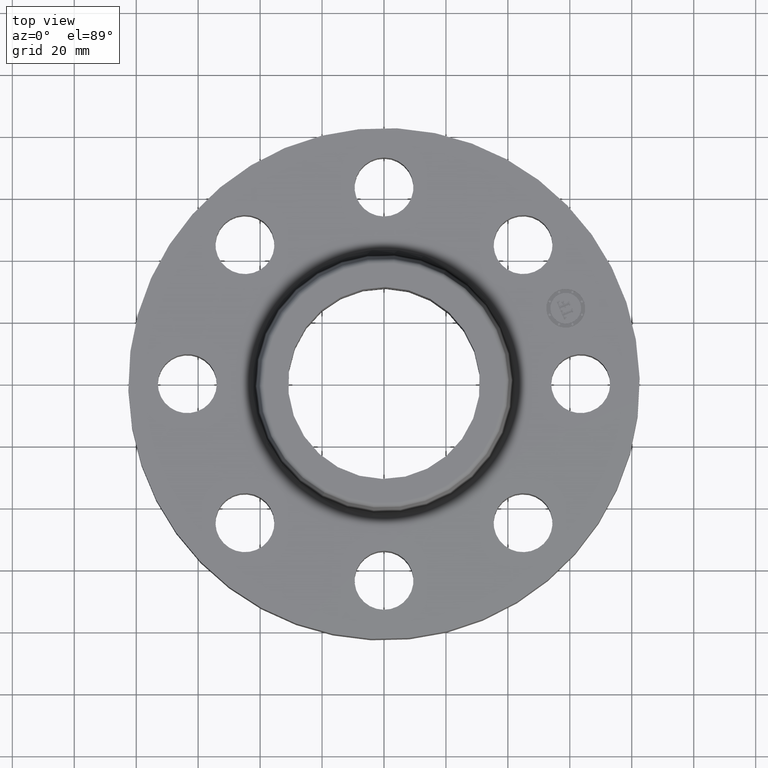
[diagram: clean part render]
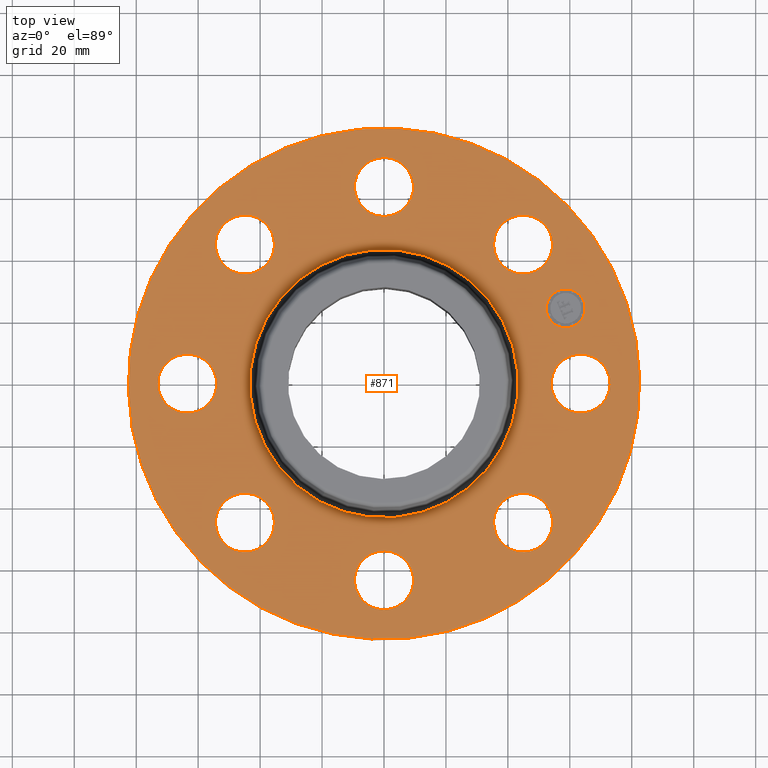
[diagram: same view with one face highlighted and labeled with its STEP entity id]
A machine part, top view. The second image highlights one B-rep face of the part: STEP entity #871.
In plain terms, the highlighted planar face has unit normal (0, 0, -1).
Its self-contained STEP definition (entity closure, byte-faithful):
#65=AXIS2_PLACEMENT_3D('Circle Axis2P3D',#63,#64,$) ;
#82=AXIS2_PLACEMENT_3D('Circle Axis2P3D',#80,#81,$) ;
#115=AXIS2_PLACEMENT_3D('Circle Axis2P3D',#113,#114,$) ;
#139=AXIS2_PLACEMENT_3D('Circle Axis2P3D',#137,#138,$) ;
#156=AXIS2_PLACEMENT_3D('Circle Axis2P3D',#154,#155,$) ;
#191=AXIS2_PLACEMENT_3D('Circle Axis2P3D',#189,#190,$) ;
#528=AXIS2_PLACEMENT_3D('Circle Axis2P3D',#526,#527,$) ;
#540=AXIS2_PLACEMENT_3D('Circle Axis2P3D',#538,#539,$) ;
#571=AXIS2_PLACEMENT_3D('Circle Axis2P3D',#569,#570,$) ;
#583=AXIS2_PLACEMENT_3D('Circle Axis2P3D',#581,#582,$) ;
#614=AXIS2_PLACEMENT_3D('Circle Axis2P3D',#612,#613,$) ;
#626=AXIS2_PLACEMENT_3D('Circle Axis2P3D',#624,#625,$) ;
#657=AXIS2_PLACEMENT_3D('Circle Axis2P3D',#655,#656,$) ;
#669=AXIS2_PLACEMENT_3D('Circle Axis2P3D',#667,#668,$) ;
#700=AXIS2_PLACEMENT_3D('Circle Axis2P3D',#698,#699,$) ;
#712=AXIS2_PLACEMENT_3D('Circle Axis2P3D',#710,#711,$) ;
#743=AXIS2_PLACEMENT_3D('Circle Axis2P3D',#741,#742,$) ;
#755=AXIS2_PLACEMENT_3D('Circle Axis2P3D',#753,#754,$) ;
#786=AXIS2_PLACEMENT_3D('Circle Axis2P3D',#784,#785,$) ;
#798=AXIS2_PLACEMENT_3D('Circle Axis2P3D',#796,#797,$) ;
#811=AXIS2_PLACEMENT_3D('Plane Axis2P3D',#808,#809,#810) ;
#855=AXIS2_PLACEMENT_3D('Circle Axis2P3D',#853,#854,$) ;
#864=AXIS2_PLACEMENT_3D('Circle Axis2P3D',#862,#863,$) ;
#46=CARTESIAN_POINT('Vertex',(2.1709065393,0.179784576977,1.)) ;
#60=CARTESIAN_POINT('Vertex',(2.82909346072,-0.179784576977,1.)) ;
#63=CARTESIAN_POINT('Axis2P3D Location',(2.50000000001,0.,1.)) ;
#80=CARTESIAN_POINT('Axis2P3D Location',(2.50000000001,0.,1.)) ;
#110=CARTESIAN_POINT('Vertex',(-1.55813300047,-2.85214332616,1.)) ;
#113=CARTESIAN_POINT('Axis2P3D Location',(0.,0.,1.)) ;
#117=CARTESIAN_POINT('Vertex',(1.55813300047,2.85214332616,1.)) ;
#137=CARTESIAN_POINT('Axis2P3D Location',(0.,0.,1.)) ;
#154=CARTESIAN_POINT('Axis2P3D Location',(0.,0.,1.)) ;
#158=CARTESIAN_POINT('Vertex',(0.81758641395,1.49658189218,1.)) ;
#160=CARTESIAN_POINT('Vertex',(-0.81758641395,-1.49658189218,1.)) ;
#189=CARTESIAN_POINT('Axis2P3D Location',(0.,0.,1.)) ;
#516=CARTESIAN_POINT('Vertex',(-1.66218962879,1.40793584173,1.)) ;
#523=CARTESIAN_POINT('Vertex',(-1.87334427715,2.12759806422,1.)) ;
#526=CARTESIAN_POINT('Axis2P3D Location',(-1.76776695297,1.76776695297,1.)) ;
#538=CARTESIAN_POINT('Axis2P3D Location',(-1.76776695297,1.76776695297,1.)) ;
#559=CARTESIAN_POINT('Vertex',(0.179784576977,-2.1709065393,1.)) ;
#566=CARTESIAN_POINT('Vertex',(-0.179784576977,-2.82909346072,1.)) ;
#569=CARTESIAN_POINT('Axis2P3D Location',(1.53080849894E-016,-2.50000000001,1.)) ;
#581=CARTESIAN_POINT('Axis2P3D Location',(1.53080849894E-016,-2.50000000001,1.)) ;
#602=CARTESIAN_POINT('Vertex',(-0.179784576977,2.1709065393,1.)) ;
#609=CARTESIAN_POINT('Vertex',(0.179784576977,2.82909346072,1.)) ;
#612=CARTESIAN_POINT('Axis2P3D Location',(-4.59242549682E-016,2.50000000001,1.)) ;
#624=CARTESIAN_POINT('Axis2P3D Location',(-4.59242549682E-016,2.50000000001,1.)) ;
#645=CARTESIAN_POINT('Vertex',(-1.40793584173,-1.66218962879,1.)) ;
#652=CARTESIAN_POINT('Vertex',(-2.12759806422,-1.87334427715,1.)) ;
#655=CARTESIAN_POINT('Axis2P3D Location',(-1.76776695297,-1.76776695297,1.)) ;
#667=CARTESIAN_POINT('Axis2P3D Location',(-1.76776695297,-1.76776695297,1.)) ;
#688=CARTESIAN_POINT('Vertex',(1.40793584173,1.66218962879,1.)) ;
#695=CARTESIAN_POINT('Vertex',(2.12759806422,1.87334427715,1.)) ;
#698=CARTESIAN_POINT('Axis2P3D Location',(1.76776695297,1.76776695297,1.)) ;
#710=CARTESIAN_POINT('Axis2P3D Location',(1.76776695297,1.76776695297,1.)) ;
#731=CARTESIAN_POINT('Vertex',(-2.1709065393,-0.179784576977,1.)) ;
#738=CARTESIAN_POINT('Vertex',(-2.82909346072,0.179784576977,1.)) ;
#741=CARTESIAN_POINT('Axis2P3D Location',(-2.50000000001,-3.06161699788E-016,1.)) ;
#753=CARTESIAN_POINT('Axis2P3D Location',(-2.50000000001,-3.06161699788E-016,1.)) ;
#774=CARTESIAN_POINT('Vertex',(1.66218962879,-1.40793584173,1.)) ;
#781=CARTESIAN_POINT('Vertex',(1.87334427715,-2.12759806422,1.)) ;
#784=CARTESIAN_POINT('Axis2P3D Location',(1.76776695297,-1.76776695297,1.)) ;
#796=CARTESIAN_POINT('Axis2P3D Location',(1.76776695297,-1.76776695297,1.)) ;
#808=CARTESIAN_POINT('Axis2P3D Location',(0.,3.25000000001,1.)) ;
#853=CARTESIAN_POINT('Axis2P3D Location',(2.30969883129,0.956708580917,1.)) ;
#857=CARTESIAN_POINT('Vertex',(2.21498468178,1.18536876521,1.)) ;
#859=CARTESIAN_POINT('Vertex',(2.4044129808,0.728048396619,1.)) ;
#862=CARTESIAN_POINT('Axis2P3D Location',(2.30969883129,0.956708580917,1.)) ;
#64=DIRECTION('Axis2P3D Direction',(0.,-0.,-0.0393700787402)) ;
#81=DIRECTION('Axis2P3D Direction',(0.,-0.,-0.0393700787402)) ;
#114=DIRECTION('Axis2P3D Direction',(0.,0.,-0.0393700787402)) ;
#138=DIRECTION('Axis2P3D Direction',(0.,0.,-0.0393700787402)) ;
#155=DIRECTION('Axis2P3D Direction',(0.,0.,-0.0393700787402)) ;
#190=DIRECTION('Axis2P3D Direction',(0.,0.,-0.0393700787402)) ;
#527=DIRECTION('Axis2P3D Direction',(0.,0.,-0.0393700787402)) ;
#539=DIRECTION('Axis2P3D Direction',(0.,0.,-0.0393700787402)) ;
#570=DIRECTION('Axis2P3D Direction',(0.,-0.,-0.0393700787402)) ;
#582=DIRECTION('Axis2P3D Direction',(0.,-0.,-0.0393700787402)) ;
#613=DIRECTION('Axis2P3D Direction',(0.,0.,-0.0393700787402)) ;
#625=DIRECTION('Axis2P3D Direction',(0.,0.,-0.0393700787402)) ;
#656=DIRECTION('Axis2P3D Direction',(-0.,0.,-0.0393700787402)) ;
#668=DIRECTION('Axis2P3D Direction',(-0.,0.,-0.0393700787402)) ;
#699=DIRECTION('Axis2P3D Direction',(0.,0.,-0.0393700787402)) ;
#711=DIRECTION('Axis2P3D Direction',(0.,0.,-0.0393700787402)) ;
#742=DIRECTION('Axis2P3D Direction',(-0.,0.,-0.0393700787402)) ;
#754=DIRECTION('Axis2P3D Direction',(-0.,0.,-0.0393700787402)) ;
#785=DIRECTION('Axis2P3D Direction',(0.,-0.,-0.0393700787402)) ;
#797=DIRECTION('Axis2P3D Direction',(0.,-0.,-0.0393700787402)) ;
#809=DIRECTION('Axis2P3D Direction',(0.,0.,-0.0393700787402)) ;
#810=DIRECTION('Axis2P3D XDirection',(0.0393700787402,0.,0.)) ;
#854=DIRECTION('Axis2P3D Direction',(0.,0.,-0.0393700787402)) ;
#863=DIRECTION('Axis2P3D Direction',(0.,0.,-0.0393700787402)) ;
#814=ORIENTED_EDGE('',*,*,#141,.F.) ;
#815=ORIENTED_EDGE('',*,*,#119,.F.) ;
#818=ORIENTED_EDGE('',*,*,#67,.T.) ;
#819=ORIENTED_EDGE('',*,*,#84,.T.) ;
#822=ORIENTED_EDGE('',*,*,#193,.T.) ;
#823=ORIENTED_EDGE('',*,*,#162,.T.) ;
#826=ORIENTED_EDGE('',*,*,#800,.T.) ;
#827=ORIENTED_EDGE('',*,*,#788,.T.) ;
#830=ORIENTED_EDGE('',*,*,#585,.T.) ;
#831=ORIENTED_EDGE('',*,*,#573,.T.) ;
#834=ORIENTED_EDGE('',*,*,#671,.T.) ;
#835=ORIENTED_EDGE('',*,*,#659,.T.) ;
#838=ORIENTED_EDGE('',*,*,#757,.T.) ;
#839=ORIENTED_EDGE('',*,*,#745,.T.) ;
#842=ORIENTED_EDGE('',*,*,#542,.T.) ;
#843=ORIENTED_EDGE('',*,*,#530,.T.) ;
#846=ORIENTED_EDGE('',*,*,#628,.T.) ;
#847=ORIENTED_EDGE('',*,*,#616,.T.) ;
#850=ORIENTED_EDGE('',*,*,#714,.T.) ;
#851=ORIENTED_EDGE('',*,*,#702,.T.) ;
#868=ORIENTED_EDGE('',*,*,#861,.T.) ;
#869=ORIENTED_EDGE('',*,*,#866,.T.) ;
#820=FACE_BOUND('',#817,.T.) ;
#824=FACE_BOUND('',#821,.T.) ;
#828=FACE_BOUND('',#825,.T.) ;
#832=FACE_BOUND('',#829,.T.) ;
#836=FACE_BOUND('',#833,.T.) ;
#840=FACE_BOUND('',#837,.T.) ;
#844=FACE_BOUND('',#841,.T.) ;
#848=FACE_BOUND('',#845,.T.) ;
#852=FACE_BOUND('',#849,.T.) ;
#870=FACE_BOUND('',#867,.T.) ;
#871=ADVANCED_FACE('PartBody',(#816,#820,#824,#828,#832,#836,#840,#844,#848,#852,#870),#812,.F.) ;
#66=CIRCLE('generated circle',#65,0.375000000002) ;
#83=CIRCLE('generated circle',#82,0.375000000002) ;
#116=CIRCLE('generated circle',#115,3.25000000001) ;
#140=CIRCLE('generated circle',#139,3.25000000001) ;
#157=CIRCLE('generated circle',#156,1.70534597788) ;
#192=CIRCLE('generated circle',#191,1.70534597788) ;
#529=CIRCLE('generated circle',#528,0.375000000001) ;
#541=CIRCLE('generated circle',#540,0.375000000001) ;
#572=CIRCLE('generated circle',#571,0.375000000002) ;
#584=CIRCLE('generated circle',#583,0.375000000002) ;
#615=CIRCLE('generated circle',#614,0.375000000002) ;
#627=CIRCLE('generated circle',#626,0.375000000002) ;
#658=CIRCLE('generated circle',#657,0.375000000001) ;
#670=CIRCLE('generated circle',#669,0.375000000001) ;
#701=CIRCLE('generated circle',#700,0.375000000001) ;
#713=CIRCLE('generated circle',#712,0.375000000001) ;
#744=CIRCLE('generated circle',#743,0.375000000001) ;
#756=CIRCLE('generated circle',#755,0.375000000001) ;
#787=CIRCLE('generated circle',#786,0.375000000001) ;
#799=CIRCLE('generated circle',#798,0.375000000001) ;
#856=CIRCLE('generated circle',#855,0.247500000001) ;
#865=CIRCLE('generated circle',#864,0.247500000001) ;
#67=EDGE_CURVE('',#47,#61,#66,.T.) ;
#84=EDGE_CURVE('',#61,#47,#83,.T.) ;
#119=EDGE_CURVE('',#111,#118,#116,.T.) ;
#141=EDGE_CURVE('',#118,#111,#140,.T.) ;
#162=EDGE_CURVE('',#159,#161,#157,.T.) ;
#193=EDGE_CURVE('',#161,#159,#192,.T.) ;
#530=EDGE_CURVE('',#517,#524,#529,.T.) ;
#542=EDGE_CURVE('',#524,#517,#541,.T.) ;
#573=EDGE_CURVE('',#560,#567,#572,.T.) ;
#585=EDGE_CURVE('',#567,#560,#584,.T.) ;
#616=EDGE_CURVE('',#603,#610,#615,.T.) ;
#628=EDGE_CURVE('',#610,#603,#627,.T.) ;
#659=EDGE_CURVE('',#646,#653,#658,.T.) ;
#671=EDGE_CURVE('',#653,#646,#670,.T.) ;
#702=EDGE_CURVE('',#689,#696,#701,.T.) ;
#714=EDGE_CURVE('',#696,#689,#713,.T.) ;
#745=EDGE_CURVE('',#732,#739,#744,.T.) ;
#757=EDGE_CURVE('',#739,#732,#756,.T.) ;
#788=EDGE_CURVE('',#775,#782,#787,.T.) ;
#800=EDGE_CURVE('',#782,#775,#799,.T.) ;
#861=EDGE_CURVE('',#858,#860,#856,.T.) ;
#866=EDGE_CURVE('',#860,#858,#865,.T.) ;
#813=EDGE_LOOP('',(#814,#815)) ;
#817=EDGE_LOOP('',(#818,#819)) ;
#821=EDGE_LOOP('',(#822,#823)) ;
#825=EDGE_LOOP('',(#826,#827)) ;
#829=EDGE_LOOP('',(#830,#831)) ;
#833=EDGE_LOOP('',(#834,#835)) ;
#837=EDGE_LOOP('',(#838,#839)) ;
#841=EDGE_LOOP('',(#842,#843)) ;
#845=EDGE_LOOP('',(#846,#847)) ;
#849=EDGE_LOOP('',(#850,#851)) ;
#867=EDGE_LOOP('',(#868,#869)) ;
#816=FACE_OUTER_BOUND('',#813,.T.) ;
#812=PLANE('',#811) ;
#47=VERTEX_POINT('',#46) ;
#61=VERTEX_POINT('',#60) ;
#111=VERTEX_POINT('',#110) ;
#118=VERTEX_POINT('',#117) ;
#159=VERTEX_POINT('',#158) ;
#161=VERTEX_POINT('',#160) ;
#517=VERTEX_POINT('',#516) ;
#524=VERTEX_POINT('',#523) ;
#560=VERTEX_POINT('',#559) ;
#567=VERTEX_POINT('',#566) ;
#603=VERTEX_POINT('',#602) ;
#610=VERTEX_POINT('',#609) ;
#646=VERTEX_POINT('',#645) ;
#653=VERTEX_POINT('',#652) ;
#689=VERTEX_POINT('',#688) ;
#696=VERTEX_POINT('',#695) ;
#732=VERTEX_POINT('',#731) ;
#739=VERTEX_POINT('',#738) ;
#775=VERTEX_POINT('',#774) ;
#782=VERTEX_POINT('',#781) ;
#858=VERTEX_POINT('',#857) ;
#860=VERTEX_POINT('',#859) ;